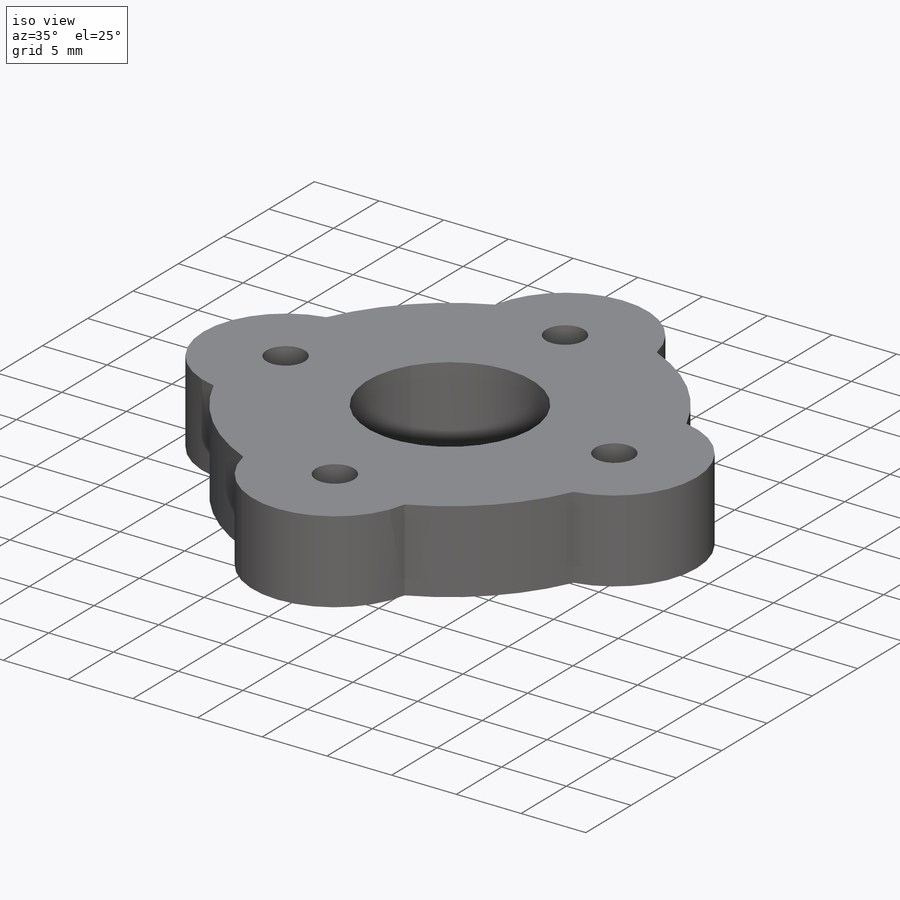
[diagram: iso view]
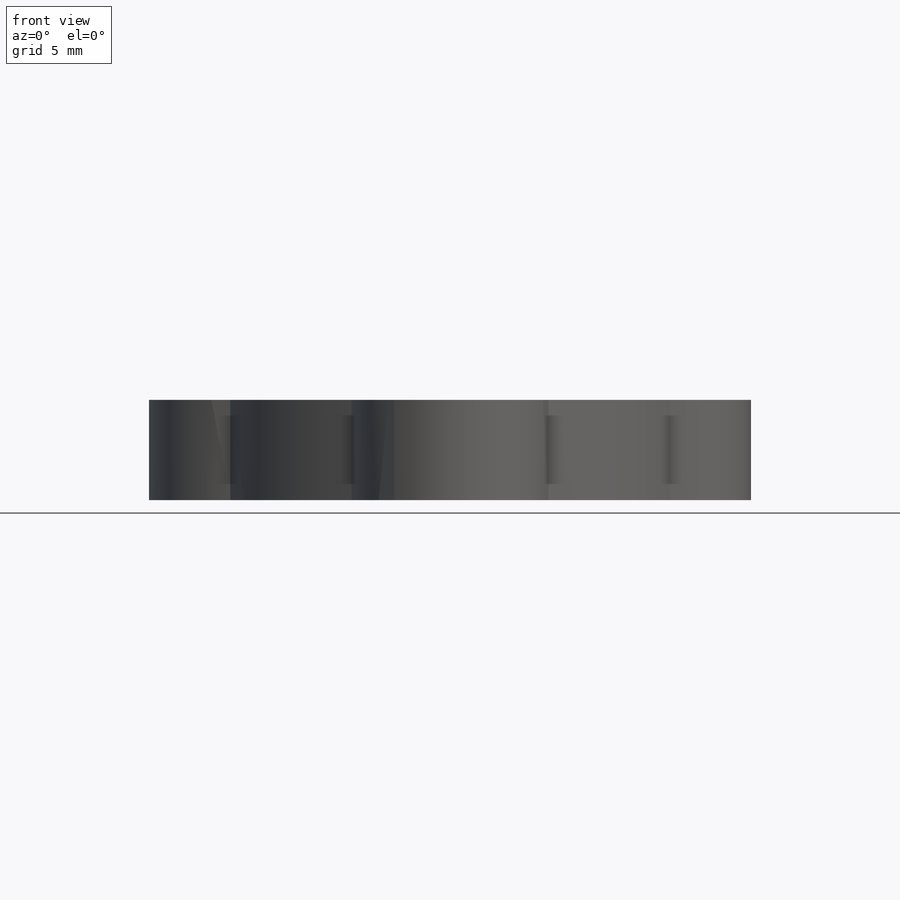
[diagram: front view]
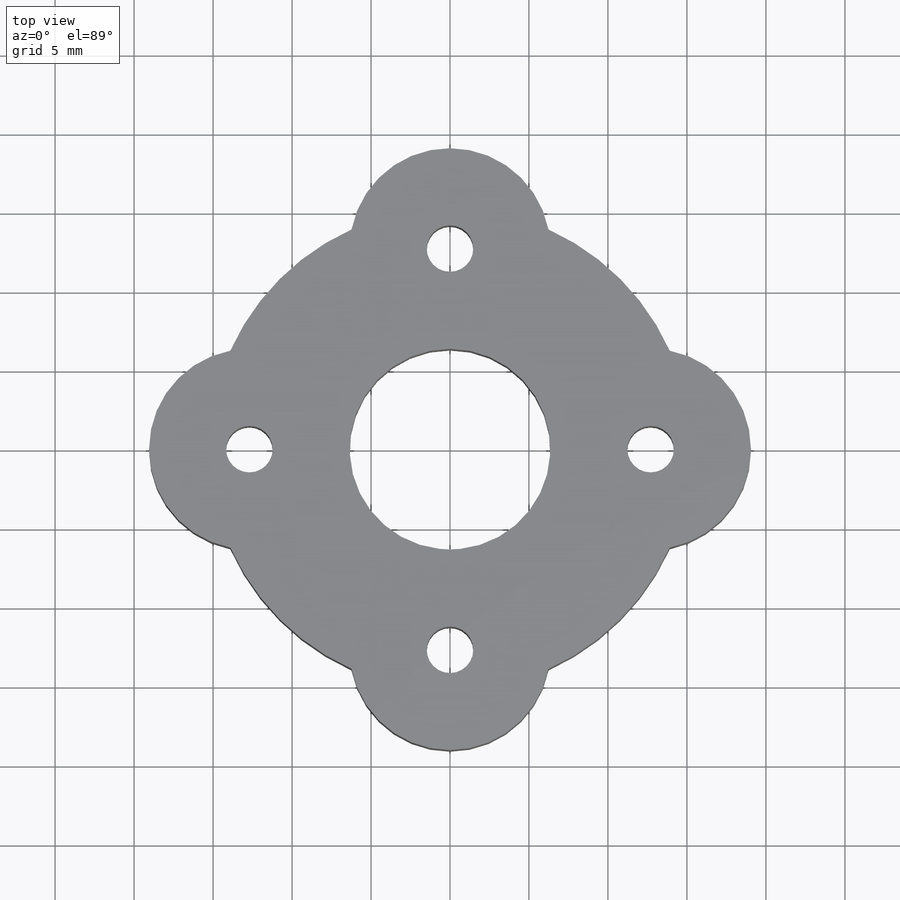
[diagram: top view]
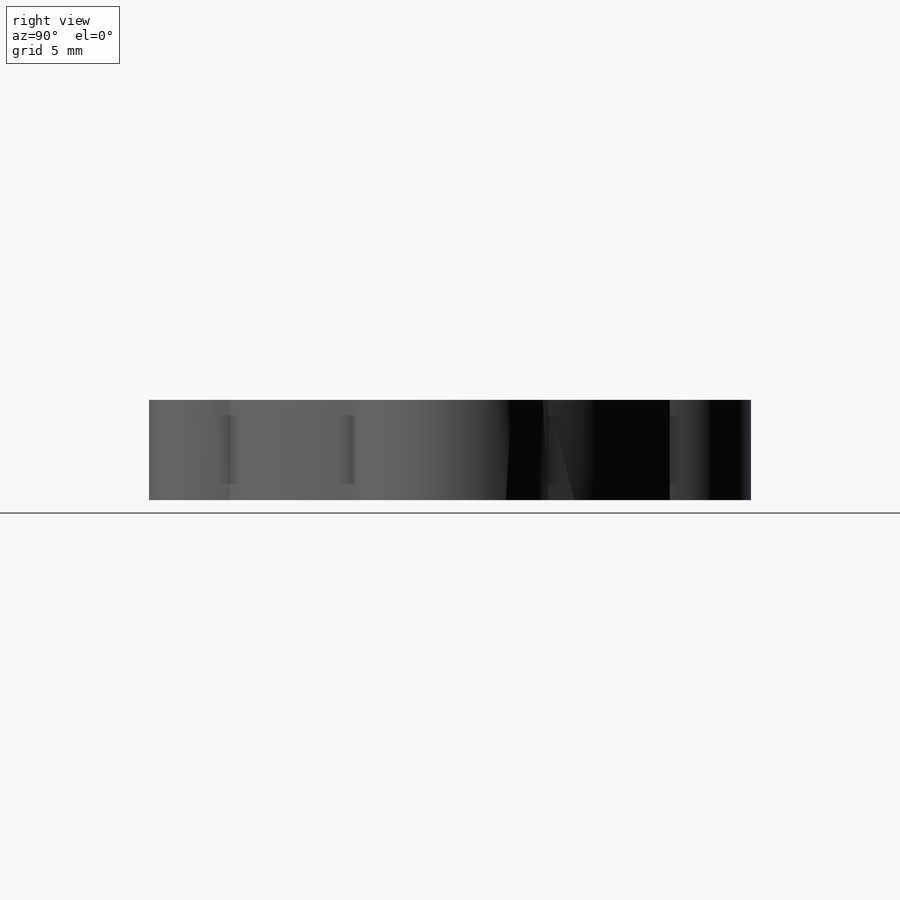
[diagram: right view]
SOLIDWORKS PART (.sldprt)
format: sldprt  version: not decoded by parser v0  size: 224,256 bytes
history: native  units: mm
features: sketch x6, extrude x2, hole x2, material x1, pattern_circular x1 (+12 scaffold rows collapsed)
feature tree (24):
  scaffold x12  (default folders/planes/origin — collapsed)
  material  "Material <not specified>"
  sketch  "Sketch1"  dims[c1.D1=25.4mm c1.D2=2.9464mm c1.D3=~34.252668mm c1.D4=12.7mm c1.D7=9.525mm c2.D3=1.5875mm c2.D5=~30.975564mm c2.D6=12.7mm c2.D8=6.35mm c2.D9=44.45mm c3.D5=4.0]
  extrude  "Boss-Extrude1"  Depth=6.35mm
  hole  "#4 Clearance Hole1"  Diameter=2.9464mm Depth=6.35mm
  sketch  "Sketch3"
  sketch  "Sketch2"  dims[hole-wizard template sketch: 61 standard entries collapsed; hole parameters above]
  hole  "3/8 (0.375) Diameter Hole1"  Diameter=9.525mm Depth=6.35mm
  sketch  "Sketch5"
  sketch  "Sketch4"  dims[hole-wizard template sketch: 61 standard entries collapsed; hole parameters above]
  sketch  "Sketch7"  dims[D1=12.7mm]
  extrude  "Boss-Extrude2"  [1 undecoded]
  pattern_circular  "CirPattern1"  Count=4 Angle=360deg
decode coverage: 8 of 11 modeling features carry decoded parameters
note: ~ marks probable driven/reference dimensions
note: 1 parameter value undecoded
note: suppression state not decoded; provenance and decode notes live in map.json
